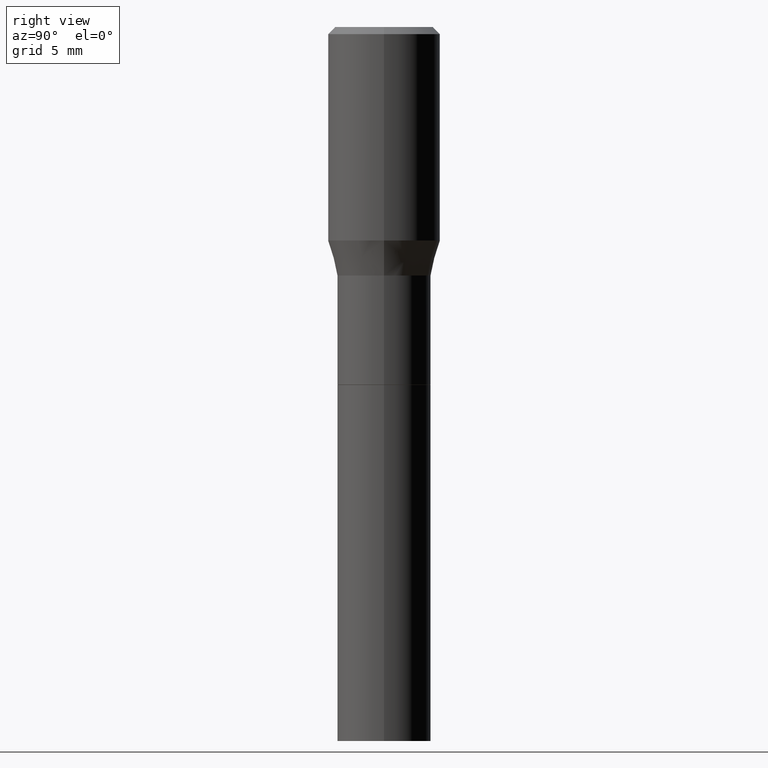
[diagram: clean part render]
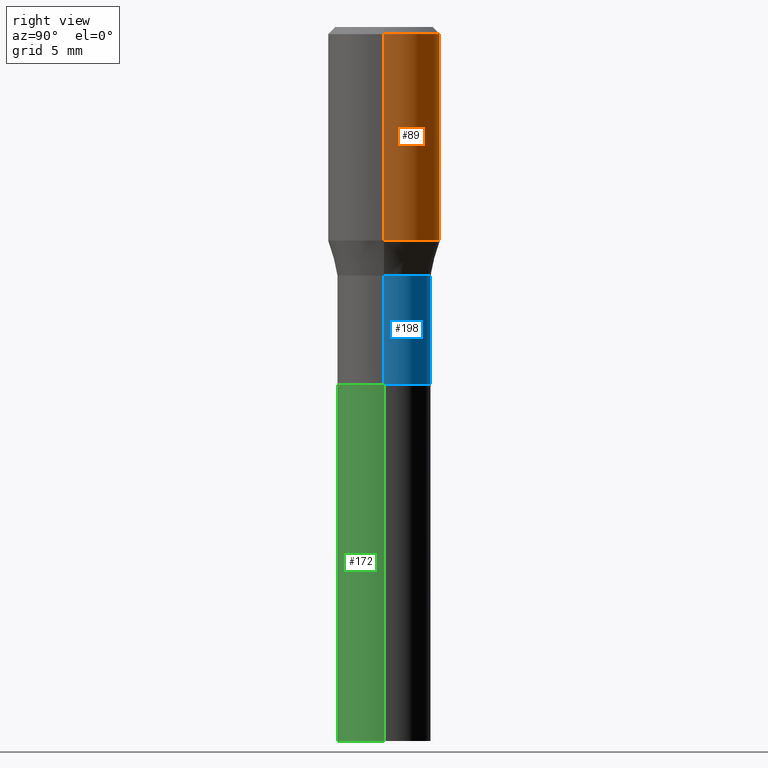
[diagram: same view with three faces highlighted in distinct colors, each labeled with its STEP entity id]
A machine part, right view with three faces highlighted in distinct colors.
Their STEP definitions:

[orange] entity #89 — the highlighted cylindrical surface (partial cylindrical patch) has radius 2.9997 mm, axis along (-0, 0, 1).
#1 = DIRECTION ( 'NONE',  ( -2.445468806185136597E-29, 3.491481338843145583E-15, 1.000000000000000000 ) ) ;
#9 = EDGE_CURVE ( 'NONE', #400, #347, #166, .T. ) ;
#28 = CARTESIAN_POINT ( 'NONE',  ( -0.1180999999999999966, 2.971177144941290176E-17, -0.01499999999999999944 ) ) ;
#39 = ORIENTED_EDGE ( 'NONE', *, *, #429, .T. ) ;
#40 = CYLINDRICAL_SURFACE ( 'NONE', #439, 0.1180999999999999966 ) ;
#56 = CARTESIAN_POINT ( 'NONE',  ( -0.1180999999999999966, -7.273552079512053883E-16, -0.4486652016312720481 ) ) ;
#57 = CARTESIAN_POINT ( 'NONE',  ( 0.1180999999999999966, -8.770601123173952432E-16, -0.01499999999999999944 ) ) ;
#60 = AXIS2_PLACEMENT_3D ( 'NONE', #329, #325, #77 ) ;
#75 = ORIENTED_EDGE ( 'NONE', *, *, #245, .F. ) ;
#77 = DIRECTION ( 'NONE',  ( 1.000000000000000000, -6.982962677686266711E-15, 0.000000000000000000 ) ) ;
#89 = ADVANCED_FACE ( 'NONE', ( #393 ), #40, .T. ) ;
#109 = CARTESIAN_POINT ( 'NONE',  ( 0.000000000000000000, 0.000000000000000000, 0.000000000000000000 ) ) ;
#111 = LINE ( 'NONE', #144, #308 ) ;
#144 = CARTESIAN_POINT ( 'NONE',  ( -0.1180999999999999966, 8.391509709326782957E-16, -5.809262341591043784E-30 ) ) ;
#156 = EDGE_CURVE ( 'NONE', #215, #347, #111, .T. ) ;
#161 = DIRECTION ( 'NONE',  ( -2.445468806185136877E-29, 3.491481338843145188E-15, 1.000000000000000000 ) ) ;
#166 = CIRCLE ( 'NONE', #60, 0.1180999999999999966 ) ;
#167 = AXIS2_PLACEMENT_3D ( 'NONE', #370, #361, #332 ) ;
#176 = VECTOR ( 'NONE', #161, 39.37007874015748143 ) ;
#180 = EDGE_LOOP ( 'NONE', ( #39, #208, #397, #75 ) ) ;
#208 = ORIENTED_EDGE ( 'NONE', *, *, #156, .T. ) ;
#213 = VERTEX_POINT ( 'NONE', #258 ) ;
#215 = VERTEX_POINT ( 'NONE', #56 ) ;
#230 = DIRECTION ( 'NONE',  ( -2.445468806185136877E-29, 3.491481338843145188E-15, 1.000000000000000000 ) ) ;
#240 = CIRCLE ( 'NONE', #167, 0.1180999999999999966 ) ;
#245 = EDGE_CURVE ( 'NONE', #213, #400, #381, .T. ) ;
#252 = DIRECTION ( 'NONE',  ( 1.000000000000000000, -6.982962677686266711E-15, 4.876176775795936353E-29 ) ) ;
#258 = CARTESIAN_POINT ( 'NONE',  ( 0.1180999999999999966, -2.391194071118632144E-15, -0.4486652016312720481 ) ) ;
#308 = VECTOR ( 'NONE', #230, 39.37007874015748143 ) ;
#325 = DIRECTION ( 'NONE',  ( -2.445468806185136597E-29, 3.491481338843145583E-15, 1.000000000000000000 ) ) ;
#329 = CARTESIAN_POINT ( 'NONE',  ( 3.668203209277705088E-31, -5.237222008264718399E-17, -0.01499999999999999944 ) ) ;
#332 = DIRECTION ( 'NONE',  ( 1.000000000000000000, -6.982962677686269077E-15, 0.000000000000000000 ) ) ;
#347 = VERTEX_POINT ( 'NONE', #28 ) ;
#361 = DIRECTION ( 'NONE',  ( -2.445468806185136597E-29, 3.491481338843145583E-15, 1.000000000000000000 ) ) ;
#370 = CARTESIAN_POINT ( 'NONE',  ( 1.097196755010040478E-29, -1.566506178883883684E-15, -0.4486652016312720481 ) ) ;
#379 = CARTESIAN_POINT ( 'NONE',  ( 0.1180999999999999966, -8.246878922347480654E-16, 5.758764772215000440E-30 ) ) ;
#381 = LINE ( 'NONE', #379, #176 ) ;
#393 = FACE_OUTER_BOUND ( 'NONE', #180, .T. ) ;
#397 = ORIENTED_EDGE ( 'NONE', *, *, #9, .F. ) ;
#400 = VERTEX_POINT ( 'NONE', #57 ) ;
#429 = EDGE_CURVE ( 'NONE', #213, #215, #240, .T. ) ;
#439 = AXIS2_PLACEMENT_3D ( 'NONE', #109, #1, #252 ) ;

[blue] entity #198 — the highlighted cylindrical surface (partial cylindrical patch) has radius 2.5006 mm, axis along (-0, 0, 1).
#5 = VECTOR ( 'NONE', #199, 39.37007874015748143 ) ;
#14 = CARTESIAN_POINT ( 'NONE',  ( 1.276534716828641754E-29, -1.822553258876122695E-15, -0.5220000000000002416 ) ) ;
#19 = FACE_OUTER_BOUND ( 'NONE', #398, .T. ) ;
#55 = AXIS2_PLACEMENT_3D ( 'NONE', #157, #301, #414 ) ;
#58 = CARTESIAN_POINT ( 'NONE',  ( 0.09845000000000005136, -3.311320901758836948E-15, -0.7515000000000000568 ) ) ;
#68 = CARTESIAN_POINT ( 'NONE',  ( -0.09845000000000005136, 6.995293233558189979E-16, -4.842691596355956844E-30 ) ) ;
#72 = AXIS2_PLACEMENT_3D ( 'NONE', #90, #447, #125 ) ;
#79 = EDGE_CURVE ( 'NONE', #256, #139, #128, .T. ) ;
#84 = DIRECTION ( 'NONE',  ( 1.000000000000000000, -6.982962677686266711E-15, 0.000000000000000000 ) ) ;
#90 = CARTESIAN_POINT ( 'NONE',  ( 0.000000000000000000, 0.000000000000000000, 0.000000000000000000 ) ) ;
#110 = ORIENTED_EDGE ( 'NONE', *, *, #298, .T. ) ;
#125 = DIRECTION ( 'NONE',  ( 1.000000000000000000, -6.982962677686266711E-15, 4.876176775795935232E-29 ) ) ;
#128 = CIRCLE ( 'NONE', #302, 0.09845000000000005136 ) ;
#139 = VERTEX_POINT ( 'NONE', #344 ) ;
#157 = CARTESIAN_POINT ( 'NONE',  ( 1.837769807848130011E-29, -2.623848226140623599E-15, -0.7515000000000000568 ) ) ;
#159 = CYLINDRICAL_SURFACE ( 'NONE', #72, 0.09845000000000005136 ) ;
#184 = ORIENTED_EDGE ( 'NONE', *, *, #79, .F. ) ;
#192 = EDGE_CURVE ( 'NONE', #412, #261, #433, .T. ) ;
#198 = ADVANCED_FACE ( 'NONE', ( #19 ), #159, .T. ) ;
#199 = DIRECTION ( 'NONE',  ( -2.445468806185136877E-29, 3.491481338843145188E-15, 1.000000000000000000 ) ) ;
#235 = CARTESIAN_POINT ( 'NONE',  ( -0.09845000000000005136, -1.924318902784805094E-15, -0.7515000000000000568 ) ) ;
#237 = LINE ( 'NONE', #68, #262 ) ;
#256 = VERTEX_POINT ( 'NONE', #419 ) ;
#261 = VERTEX_POINT ( 'NONE', #235 ) ;
#262 = VECTOR ( 'NONE', #310, 39.37007874015748143 ) ;
#285 = EDGE_CURVE ( 'NONE', #412, #256, #305, .T. ) ;
#298 = EDGE_CURVE ( 'NONE', #261, #139, #237, .T. ) ;
#301 = DIRECTION ( 'NONE',  ( -2.445468806185136597E-29, 3.491481338843145583E-15, 1.000000000000000000 ) ) ;
#302 = AXIS2_PLACEMENT_3D ( 'NONE', #14, #408, #84 ) ;
#305 = LINE ( 'NONE', #337, #5 ) ;
#310 = DIRECTION ( 'NONE',  ( -2.445468806185136877E-29, 3.491481338843145188E-15, 1.000000000000000000 ) ) ;
#330 = ORIENTED_EDGE ( 'NONE', *, *, #192, .T. ) ;
#337 = CARTESIAN_POINT ( 'NONE',  ( 0.09845000000000005136, -6.874726756182133489E-16, 4.800596035771100615E-30 ) ) ;
#344 = CARTESIAN_POINT ( 'NONE',  ( -0.09845000000000005136, -9.251895717357545429E-16, -0.5220000000000002416 ) ) ;
#367 = ORIENTED_EDGE ( 'NONE', *, *, #285, .F. ) ;
#398 = EDGE_LOOP ( 'NONE', ( #330, #110, #184, #367 ) ) ;
#408 = DIRECTION ( 'NONE',  ( -2.445468806185136597E-29, 3.491481338843145583E-15, 1.000000000000000000 ) ) ;
#412 = VERTEX_POINT ( 'NONE', #58 ) ;
#414 = DIRECTION ( 'NONE',  ( 1.000000000000000000, -6.982962677686266711E-15, 0.000000000000000000 ) ) ;
#419 = CARTESIAN_POINT ( 'NONE',  ( 0.09845000000000005136, -2.510025934494336044E-15, -0.5220000000000002416 ) ) ;
#433 = CIRCLE ( 'NONE', #55, 0.09845000000000005136 ) ;
#447 = DIRECTION ( 'NONE',  ( -2.445468806185136597E-29, 3.491481338843145583E-15, 1.000000000000000000 ) ) ;

[green] entity #172 — the highlighted cylindrical surface (partial cylindrical patch) has radius 2.5006 mm, axis along (-0, 0, 1).
#3 = ORIENTED_EDGE ( 'NONE', *, *, #163, .T. ) ;
#17 = ORIENTED_EDGE ( 'NONE', *, *, #209, .F. ) ;
#38 = AXIS2_PLACEMENT_3D ( 'NONE', #290, #53, #255 ) ;
#42 = VERTEX_POINT ( 'NONE', #115 ) ;
#44 = VERTEX_POINT ( 'NONE', #149 ) ;
#53 = DIRECTION ( 'NONE',  ( -2.445468806185136597E-29, 3.491481338843145583E-15, 1.000000000000000000 ) ) ;
#62 = CIRCLE ( 'NONE', #323, 0.09844999999999999585 ) ;
#70 = EDGE_CURVE ( 'NONE', #121, #44, #80, .T. ) ;
#71 = VECTOR ( 'NONE', #188, 39.37007874015748143 ) ;
#80 = LINE ( 'NONE', #228, #71 ) ;
#83 = DIRECTION ( 'NONE',  ( -2.445468806185136877E-29, 3.491481338843145188E-15, 1.000000000000000000 ) ) ;
#93 = DIRECTION ( 'NONE',  ( 1.000000000000000000, -6.982962677686265922E-15, 0.000000000000000000 ) ) ;
#115 = CARTESIAN_POINT ( 'NONE',  ( 0.09844999999999999585, -3.313066642428258452E-15, -0.7520000000000001128 ) ) ;
#121 = VERTEX_POINT ( 'NONE', #278 ) ;
#132 = DIRECTION ( 'NONE',  ( -2.445468806185136597E-29, 3.491481338843145583E-15, 1.000000000000000000 ) ) ;
#149 = CARTESIAN_POINT ( 'NONE',  ( -0.09844999999999999585, -3.231878664181563332E-15, -0.7520000000000001128 ) ) ;
#163 = EDGE_CURVE ( 'NONE', #177, #42, #292, .T. ) ;
#172 = ADVANCED_FACE ( 'NONE', ( #336 ), #369, .T. ) ;
#177 = VERTEX_POINT ( 'NONE', #264 ) ;
#183 = CARTESIAN_POINT ( 'NONE',  ( 0.09844999999999999585, -6.874726756182129545E-16, 4.800596035771099214E-30 ) ) ;
#188 = DIRECTION ( 'NONE',  ( -2.445468806185136877E-29, 3.491481338843145188E-15, 1.000000000000000000 ) ) ;
#202 = CIRCLE ( 'NONE', #289, 0.09844999999999999585 ) ;
#209 = EDGE_CURVE ( 'NONE', #44, #42, #202, .T. ) ;
#228 = CARTESIAN_POINT ( 'NONE',  ( -0.09844999999999999585, 6.995293233558186035E-16, -4.842691596355954042E-30 ) ) ;
#232 = CARTESIAN_POINT ( 'NONE',  ( 1.838992542251222813E-29, -2.625593966810045497E-15, -0.7520000000000001128 ) ) ;
#255 = DIRECTION ( 'NONE',  ( 1.000000000000000000, -6.982962677686266711E-15, 4.876176775795936353E-29 ) ) ;
#264 = CARTESIAN_POINT ( 'NONE',  ( 0.09844999999999999585, -5.924694683882931526E-15, -1.500000000000000222 ) ) ;
#278 = CARTESIAN_POINT ( 'NONE',  ( -0.09844999999999999585, -3.231878664181563332E-15, -1.500000000000000222 ) ) ;
#284 = ORIENTED_EDGE ( 'NONE', *, *, #70, .F. ) ;
#289 = AXIS2_PLACEMENT_3D ( 'NONE', #232, #435, #373 ) ;
#290 = CARTESIAN_POINT ( 'NONE',  ( 0.000000000000000000, 0.000000000000000000, 0.000000000000000000 ) ) ;
#292 = LINE ( 'NONE', #183, #296 ) ;
#296 = VECTOR ( 'NONE', #83, 39.37007874015748143 ) ;
#322 = EDGE_CURVE ( 'NONE', #121, #177, #62, .T. ) ;
#323 = AXIS2_PLACEMENT_3D ( 'NONE', #450, #132, #93 ) ;
#336 = FACE_OUTER_BOUND ( 'NONE', #387, .T. ) ;
#345 = ORIENTED_EDGE ( 'NONE', *, *, #322, .T. ) ;
#369 = CYLINDRICAL_SURFACE ( 'NONE', #38, 0.09844999999999999585 ) ;
#373 = DIRECTION ( 'NONE',  ( 1.000000000000000000, -6.982962677686265922E-15, 0.000000000000000000 ) ) ;
#387 = EDGE_LOOP ( 'NONE', ( #284, #345, #3, #17 ) ) ;
#435 = DIRECTION ( 'NONE',  ( -2.445468806185136597E-29, 3.491481338843145583E-15, 1.000000000000000000 ) ) ;
#450 = CARTESIAN_POINT ( 'NONE',  ( 3.668203209277704895E-29, -5.237222008264718177E-15, -1.500000000000000222 ) ) ;